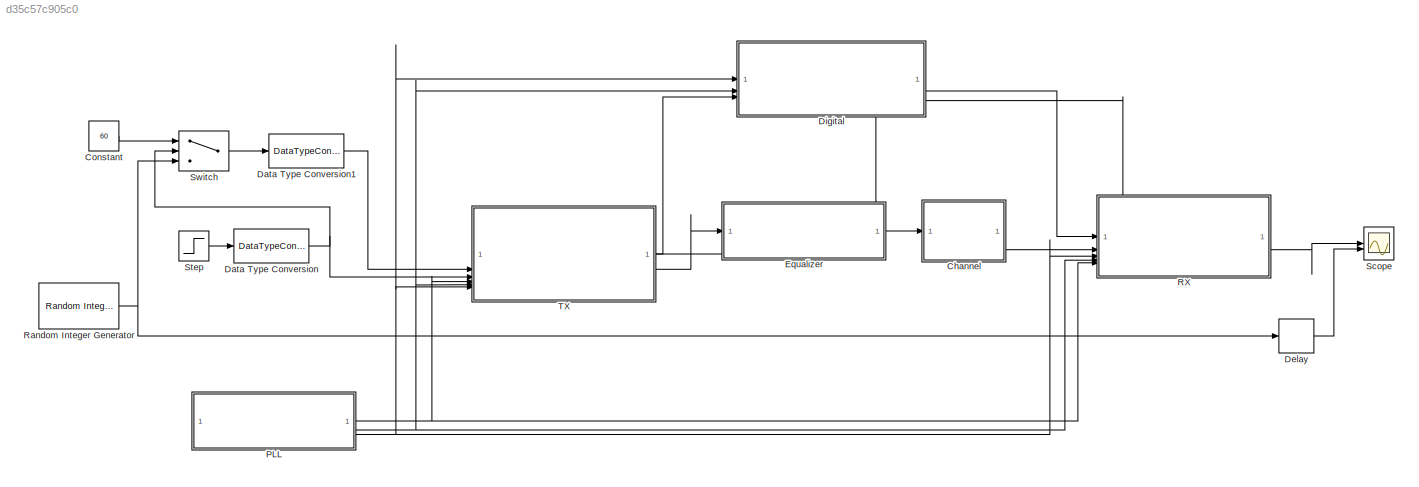
MODEL slx_d35c57c905c0
KIND model
CONFIG AbsTol = auto
CONFIG EnableMultiTasking = off
CONFIG FixedStep = auto
CONFIG InitFcn = time_precision = 1e-13;\nserial_frequency = 5e9;\nserial_time_period = 1/serial_frequency;\n\nchannel_cutoff_frequency = 5e9;\nequalizer_cutoff_frequency = 20e9;\n
CONFIG MaxStep = auto
CONFIG MinStep = auto
CONFIG RelTol = 1e-3
CONFIG SampleTimeConstraint = Unconstrained
CONFIG SolverName = VariableStepAuto
CONFIG StartTime = 0.0
CONFIG StopTime = 5e-9
BLOCK [SubSystem] Channel
  ReferencedSubsystem = Channel
BLOCK [Constant] Constant
  SampleTime = 2e-9
  Value = 60
BLOCK [DataTypeConversion] Data Type Conversion
  RndMeth = Floor
  SaturateOnIntegerOverflow = off
BLOCK [DataTypeConversion] Data Type Conversion1
  RndMeth = Floor
  SaturateOnIntegerOverflow = off
BLOCK [Delay] Delay
  DelayLength = 3
  InputPortMap = u0
BLOCK [ModelReference] Digital
  ModelNameDialog = Digital.slx
  ModelReferenceVersion = 1.14
  PortSchema = {"entries":[{"content":{"sides":[{"content":{"connectorIds":["In1","In2","In3","Out1"]},"type":"ConnectorPlacement.EquallySpacedRectSide","uuid":"b7b79baa-a799-4c94-a7a9-a4e09b743ea1"},{"content":{"connectorIds":["In4","Out2"],"side":"RIGHT"},"type":"ConnectorPlacement.EquallySpacedRectSide","uuid":"5f95d1cd-9091-48c2-a49e-458605168521"},{"content":{"connectorIds":[],"side":"TOP"},"type":"Connecto...<+265ch>
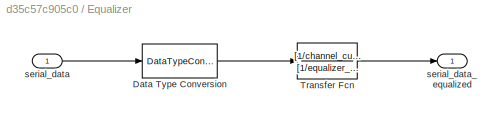
BLOCK [SubSystem] Equalizer
BLOCK [DataTypeConversion] Equalizer/Data Type Conversion
  RndMeth = Floor
  SaturateOnIntegerOverflow = off
BLOCK [TransferFcn] Equalizer/Transfer Fcn
  Denominator = [1/equalizer_cutoff_frequency 1]
  Numerator = [1/channel_cutoff_frequency 1]
BLOCK [Inport] Equalizer/serial_data
BLOCK [Outport] Equalizer/serial_data_equalized
BLOCK [SubSystem] PLL
  ReferencedSubsystem = PLL
BLOCK [SubSystem] RX
  PortSchema = {"entries":[{"content":{"sides":[{"content":{"connectorIds":["Out1","In1","In2","In3","In4","In5"]},"type":"ConnectorPlacement.EquallySpacedRectSide","uuid":"332f60d1-efc8-4b60-9560-f0b6233e5a1d"},{"content":{"connectorIds":["Out2","Out3","Out4"],"side":"RIGHT"},"type":"ConnectorPlacement.EquallySpacedRectSide","uuid":"dafd61c7-8226-4902-9c19-5bcc9f27978a"},{"content":{"connectorIds":[],"side":"TO...<+285ch>
  ReferencedSubsystem = RX
BLOCK [Reference] Random Integer Generator  REF=commrandsrc3/Random Integer
Generator
  SourceBlock = commrandsrc3/Random Integer\nGenerator
  SourceType = Random Integer Generator
BLOCK [Scope] Scope
  Floating = off
  NumInputPorts = 2
  ScopeSpecificationString = Simulink.scopes.TimeScopeBlockCfg('CurrentConfiguration', extmgr.ConfigurationSet(extmgr.Configuration('Core','General UI',true),extmgr.Configuration('Core','Source UI',true),extmgr.Configuration('Sources','WiredSimulink',true),extmgr.Configuration('Visuals','Time Domain',true,'SerializedDisplays',{struct('MinYLimReal','-31.00000','MaxYLimReal','279.00000','YLabelReal','','MinYLimMag','0.00000','M...<+1390ch>
BLOCK [Step] Step
  After = 0
  Before = 1
  OutDataTypeStr = Inherit: Inherit via back propagation
  SampleTime = 1e-10
  Time = 2e-9
BLOCK [Switch] Switch
  Criteria = u2 ~= 0
  InputSameDT = off
  SaturateOnIntegerOverflow = off
BLOCK [SubSystem] TX
  PortSchema = {"entries":[{"content":{"sides":[{"content":{"connectorIds":["In2","In3","In4","In5","In6"]},"type":"ConnectorPlacement.EquallySpacedRectSide","uuid":"306d1651-59ce-4491-8bc6-c654f5894e4f"},{"content":{"connectorIds":["Out1","In1","Out2"],"side":"RIGHT"},"type":"ConnectorPlacement.EquallySpacedRectSide","uuid":"70dbc3a5-cec5-472c-9fb3-59e598278cb7"},{"content":{"connectorIds":[],"side":"TOP"},"typ...<+277ch>
  ReferencedSubsystem = TX
LINE Channel:1 -> RX:2
LINE Constant:1 -> Switch:1
LINE Data Type Conversion1:1 -> TX:2
NET Data Type Conversion:1 -> Switch:2, TX:3
LINE Delay:1 -> Scope:2
LINE Digital:1 -> TX:1
LINE Digital:2 -> RX:1
LINE Equalizer/Data Type Conversion:1 -> Equalizer/Transfer Fcn:1
LINE Equalizer/Transfer Fcn:1 -> Equalizer/serial_data_equalized:1
LINE Equalizer/serial_data:1 -> Equalizer/Data Type Conversion:1
LINE Equalizer:1 -> Channel:1
NET PLL:1 -> RX:5, TX:4
NET PLL:2 -> Digital:2, RX:4, TX:5
NET PLL:3 -> Digital:1, RX:3, TX:6
LINE RX:1 -> Digital:4
LINE RX:2 -> Scope:1
NET Random Integer Generator:1 -> Delay:1, Switch:3
LINE Step:1 -> Data Type Conversion:1
LINE Switch:1 -> Data Type Conversion1:1
LINE TX:1 -> Digital:3
LINE TX:2 -> Equalizer:1
note: NET lines group one-source signal fan-out (src -> all destinations, sorted); 1:1 wires keep LINE
